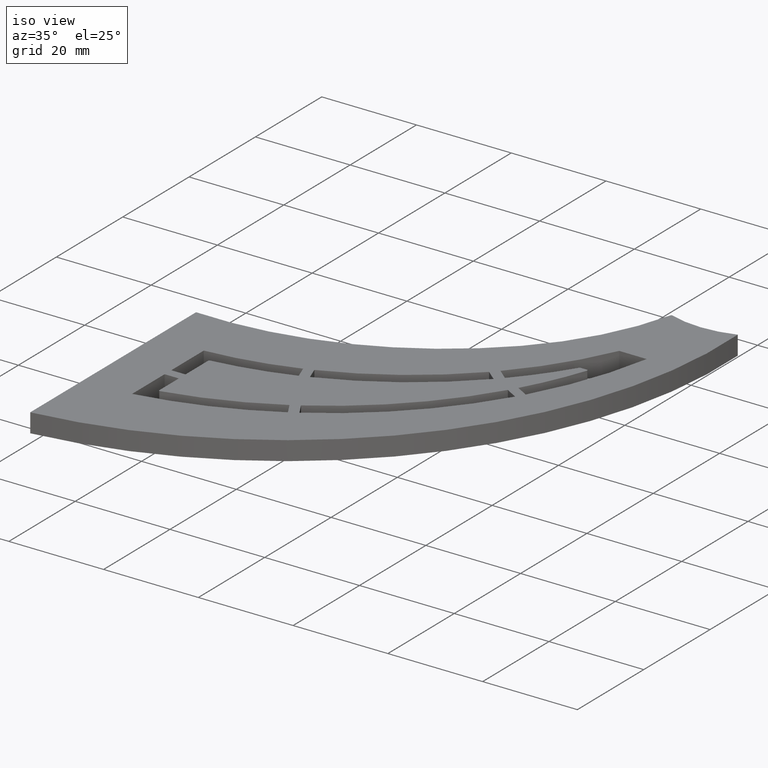
[diagram: clean part render]
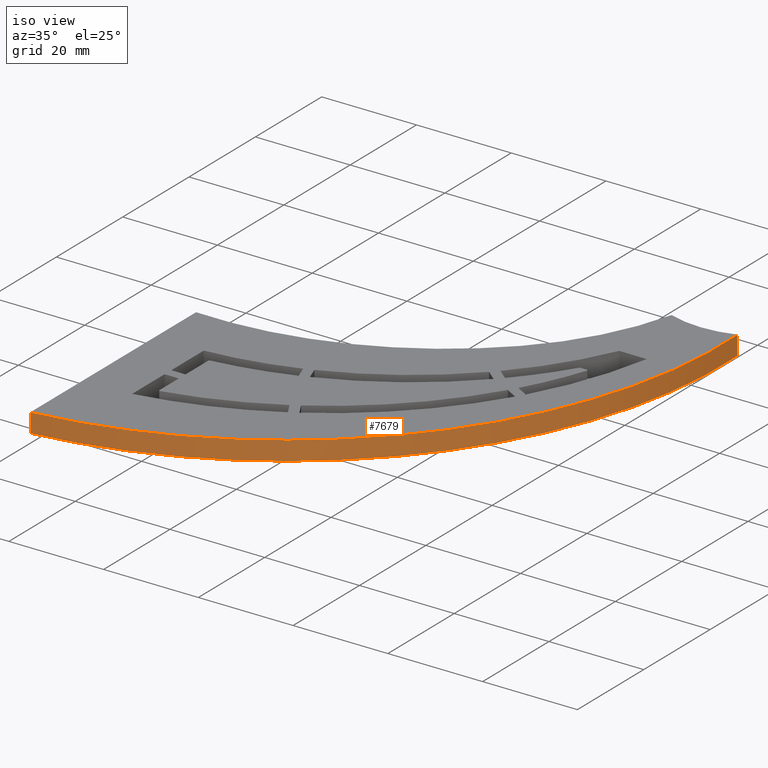
[diagram: same view with one face highlighted and labeled with its STEP entity id]
A machine part, iso view. The second image highlights one B-rep face of the part: STEP entity #7679.
In plain terms, the highlighted cylindrical surface (partial cylindrical patch) has radius 92 mm, axis along (-0, -0, -1).
Its self-contained STEP definition (entity closure, byte-faithful):
#249 = DIRECTION ( 'NONE',  ( -1.000000000000000000, 0.000000000000000000, 0.000000000000000000 ) ) ;
#581 = LINE ( 'NONE', #2753, #5722 ) ;
#624 = CYLINDRICAL_SURFACE ( 'NONE', #12819, 91.99999999999941735 ) ;
#740 = LINE ( 'NONE', #9110, #7305 ) ;
#1196 = CARTESIAN_POINT ( 'NONE',  ( -9.878794471127335441, 66.46807869304582539, 2.000000000000000000 ) ) ;
#1299 = DIRECTION ( 'NONE',  ( -0.000000000000000000, -0.000000000000000000, -1.000000000000000000 ) ) ;
#1804 = ORIENTED_EDGE ( 'NONE', *, *, #5969, .F. ) ;
#1840 = CARTESIAN_POINT ( 'NONE',  ( 81.99999999999997158, 71.18900302333739205, 2.000000000000000000 ) ) ;
#2421 = VERTEX_POINT ( 'NONE', #10512 ) ;
#2753 = CARTESIAN_POINT ( 'NONE',  ( 2.220446049250313081E-13, -24.99999999999879918, 2.000000000000000000 ) ) ;
#3838 = FACE_OUTER_BOUND ( 'NONE', #11469, .T. ) ;
#3952 = DIRECTION ( 'NONE',  ( 1.000000000000000000, 0.000000000000000000, 0.000000000000000000 ) ) ;
#3991 = ORIENTED_EDGE ( 'NONE', *, *, #4603, .F. ) ;
#4468 = VERTEX_POINT ( 'NONE', #13137 ) ;
#4603 = EDGE_CURVE ( 'NONE', #4468, #4926, #7088, .T. ) ;
#4926 = VERTEX_POINT ( 'NONE', #1840 ) ;
#5203 = AXIS2_PLACEMENT_3D ( 'NONE', #7603, #9941, #3952 ) ;
#5572 = EDGE_CURVE ( 'NONE', #8354, #2421, #11479, .T. ) ;
#5722 = VECTOR ( 'NONE', #12856, 1000.000000000000000 ) ;
#5969 = EDGE_CURVE ( 'NONE', #4926, #2421, #740, .T. ) ;
#7088 = CIRCLE ( 'NONE', #5203, 91.99999999999938893 ) ;
#7305 = VECTOR ( 'NONE', #11366, 1000.000000000000000 ) ;
#7603 = CARTESIAN_POINT ( 'NONE',  ( -9.878794471127335441, 66.46807869304582539, 2.000000000000000000 ) ) ;
#7679 = ADVANCED_FACE ( 'NONE', ( #3838 ), #624, .T. ) ;
#8354 = VERTEX_POINT ( 'NONE', #10827 ) ;
#9110 = CARTESIAN_POINT ( 'NONE',  ( 81.99999999999997158, 71.18900302333739205, 2.000000000000000000 ) ) ;
#9657 = AXIS2_PLACEMENT_3D ( 'NONE', #11180, #12072, #13144 ) ;
#9941 = DIRECTION ( 'NONE',  ( -0.000000000000000000, 0.000000000000000000, 1.000000000000000000 ) ) ;
#10512 = CARTESIAN_POINT ( 'NONE',  ( 81.99999999999997158, 71.18900302333739205, -2.000000000000000000 ) ) ;
#10709 = ORIENTED_EDGE ( 'NONE', *, *, #5572, .T. ) ;
#10827 = CARTESIAN_POINT ( 'NONE',  ( 2.220446049250313081E-13, -24.99999999999879918, -2.000000000000000000 ) ) ;
#11180 = CARTESIAN_POINT ( 'NONE',  ( -9.878794471127335441, 66.46807869304582539, -2.000000000000000000 ) ) ;
#11292 = ORIENTED_EDGE ( 'NONE', *, *, #11826, .T. ) ;
#11366 = DIRECTION ( 'NONE',  ( -0.000000000000000000, -0.000000000000000000, -1.000000000000000000 ) ) ;
#11469 = EDGE_LOOP ( 'NONE', ( #10709, #1804, #3991, #11292 ) ) ;
#11479 = CIRCLE ( 'NONE', #9657, 91.99999999999938893 ) ;
#11826 = EDGE_CURVE ( 'NONE', #4468, #8354, #581, .T. ) ;
#12072 = DIRECTION ( 'NONE',  ( -0.000000000000000000, 0.000000000000000000, 1.000000000000000000 ) ) ;
#12819 = AXIS2_PLACEMENT_3D ( 'NONE', #1196, #1299, #249 ) ;
#12856 = DIRECTION ( 'NONE',  ( -0.000000000000000000, -0.000000000000000000, -1.000000000000000000 ) ) ;
#13137 = CARTESIAN_POINT ( 'NONE',  ( 2.220446049250313081E-13, -24.99999999999879918, 2.000000000000000000 ) ) ;
#13144 = DIRECTION ( 'NONE',  ( 1.000000000000000000, 0.000000000000000000, 0.000000000000000000 ) ) ;